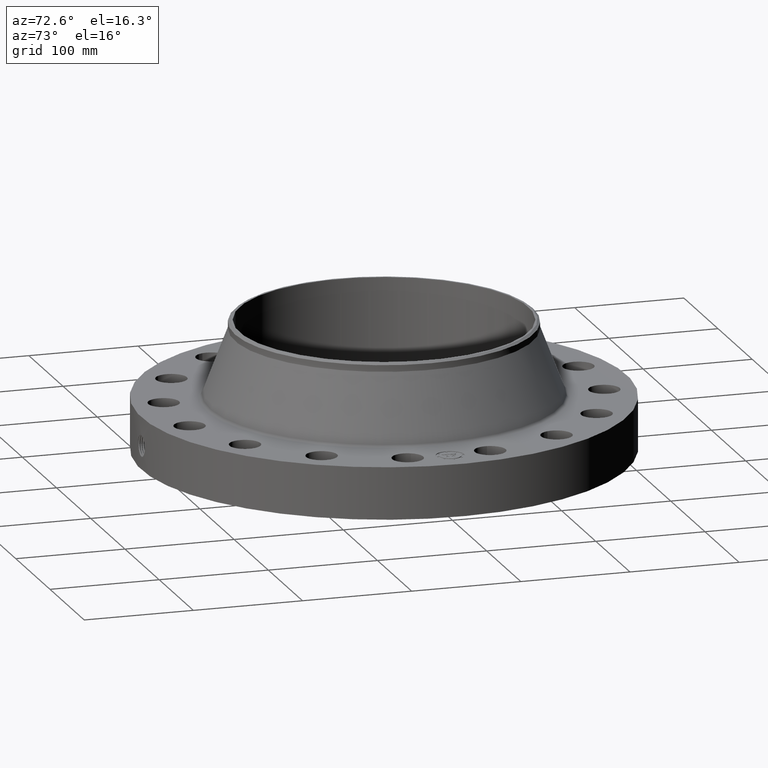
[diagram: clean part render]
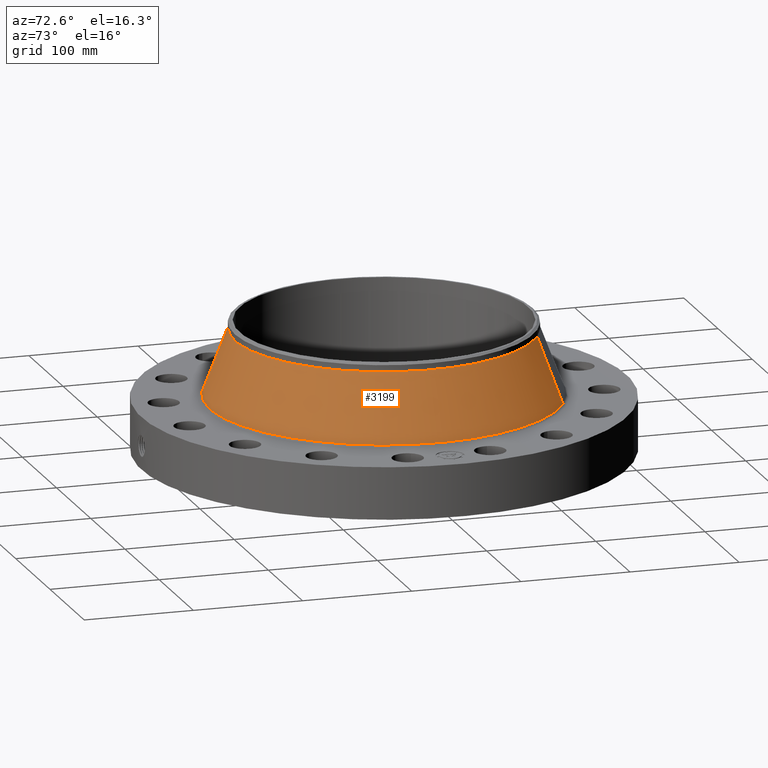
[diagram: same view with one face highlighted and labeled with its STEP entity id]
A machine part, auxiliary view. The second image highlights one B-rep face of the part: STEP entity #3199.
In plain terms, the highlighted conical surface has half-angle 20.986 deg.
Its self-contained STEP definition (entity closure, byte-faithful):
#2416=AXIS2_PLACEMENT_3D('Circle Axis2P3D',#2414,#2415,$) ;
#3172=AXIS2_PLACEMENT_3D('Cone Axis2P3D',#3169,#3170,#3171) ;
#3183=AXIS2_PLACEMENT_3D('Circle Axis2P3D',#3181,#3182,$) ;
#2411=CARTESIAN_POINT('Vertex',(3.01101074578,5.51161820009,2.01702401572)) ;
#2414=CARTESIAN_POINT('Axis2P3D Location',(0.,0.,2.01702401572)) ;
#2418=CARTESIAN_POINT('Vertex',(-3.01101074578,-5.51161820009,2.01702401572)) ;
#3169=CARTESIAN_POINT('Axis2P3D Location',(0.,0.,4.37759002243)) ;
#3174=CARTESIAN_POINT('Line Origine',(2.79396150789,5.11431223514,3.19730701908)) ;
#3178=CARTESIAN_POINT('Vertex',(2.57691227001,4.71700627018,4.37759002243)) ;
#3181=CARTESIAN_POINT('Axis2P3D Location',(0.,0.,4.37759002243)) ;
#3185=CARTESIAN_POINT('Vertex',(-2.57691227001,-4.71700627018,4.37759002243)) ;
#3188=CARTESIAN_POINT('Line Origine',(-2.79396150789,-5.11431223514,3.19730701908)) ;
#2415=DIRECTION('Axis2P3D Direction',(0.,0.,-0.0393700787402)) ;
#3170=DIRECTION('Axis2P3D Direction',(0.,0.,-0.0393700787402)) ;
#3171=DIRECTION('Axis2P3D XDirection',(-0.0188750212049,-0.0345504945626,0.)) ;
#3175=DIRECTION('Vector Direction',(0.00675977178963,0.0123736792625,-0.0367586812449)) ;
#3182=DIRECTION('Axis2P3D Direction',(0.,0.,-0.0393700787402)) ;
#3189=DIRECTION('Vector Direction',(-0.00675977178963,-0.0123736792625,-0.0367586812449)) ;
#3176=VECTOR('Line Direction',#3175,0.0393700787402) ;
#3190=VECTOR('Line Direction',#3189,0.0393700787402) ;
#3194=ORIENTED_EDGE('',*,*,#2420,.F.) ;
#3195=ORIENTED_EDGE('',*,*,#3180,.T.) ;
#3196=ORIENTED_EDGE('',*,*,#3187,.T.) ;
#3197=ORIENTED_EDGE('',*,*,#3192,.F.) ;
#3199=ADVANCED_FACE('PartBody',(#3198),#3173,.T.) ;
#2417=CIRCLE('generated circle',#2416,6.28045546873) ;
#3184=CIRCLE('generated circle',#3183,5.37500000002) ;
#3173=CONICAL_SURFACE('Cone',#3172,5.37500000002,0.36626770683) ;
#2420=EDGE_CURVE('',#2412,#2419,#2417,.T.) ;
#3180=EDGE_CURVE('',#2412,#3179,#3177,.F.) ;
#3187=EDGE_CURVE('',#3179,#3186,#3184,.T.) ;
#3192=EDGE_CURVE('',#2419,#3186,#3191,.F.) ;
#3193=EDGE_LOOP('',(#3194,#3195,#3196,#3197)) ;
#3198=FACE_OUTER_BOUND('',#3193,.T.) ;
#3177=LINE('Line',#3174,#3176) ;
#3191=LINE('Line',#3188,#3190) ;
#2412=VERTEX_POINT('',#2411) ;
#2419=VERTEX_POINT('',#2418) ;
#3179=VERTEX_POINT('',#3178) ;
#3186=VERTEX_POINT('',#3185) ;